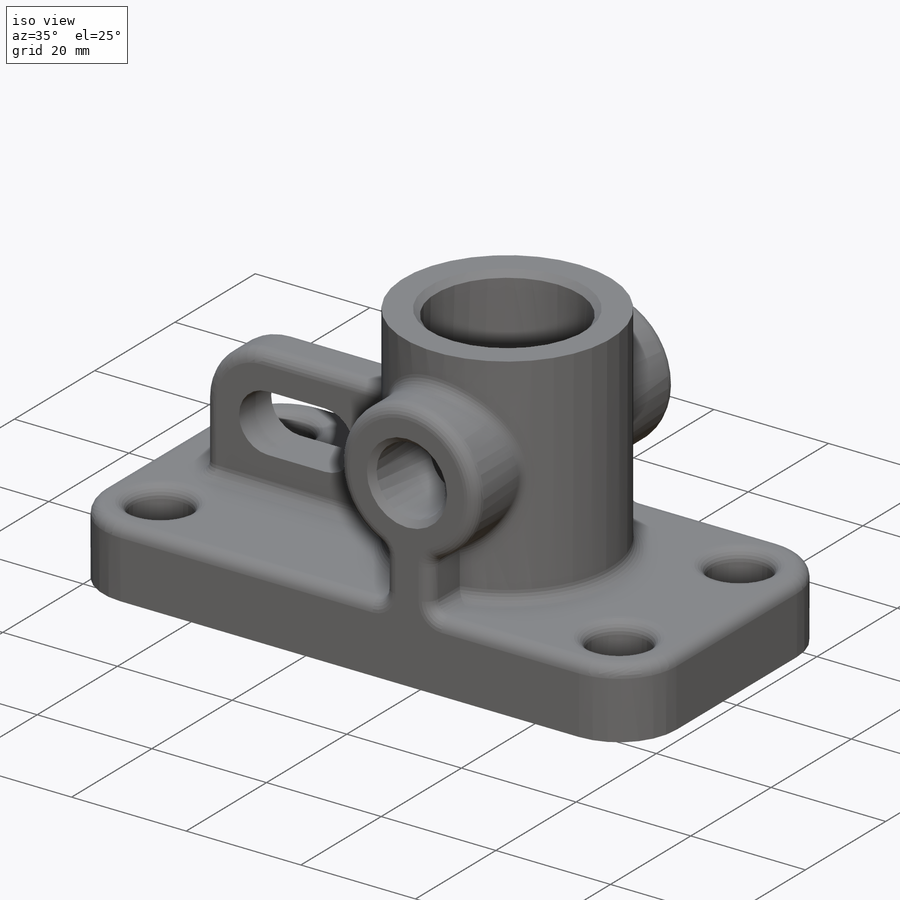
[diagram: iso view]
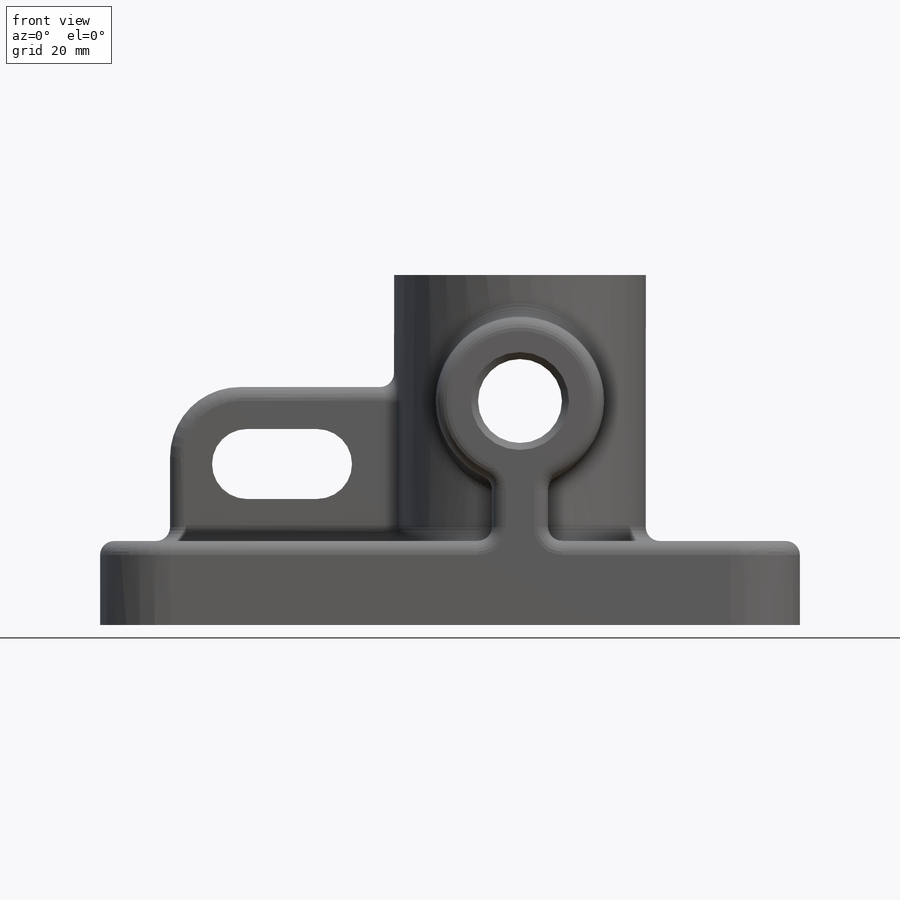
[diagram: front view]
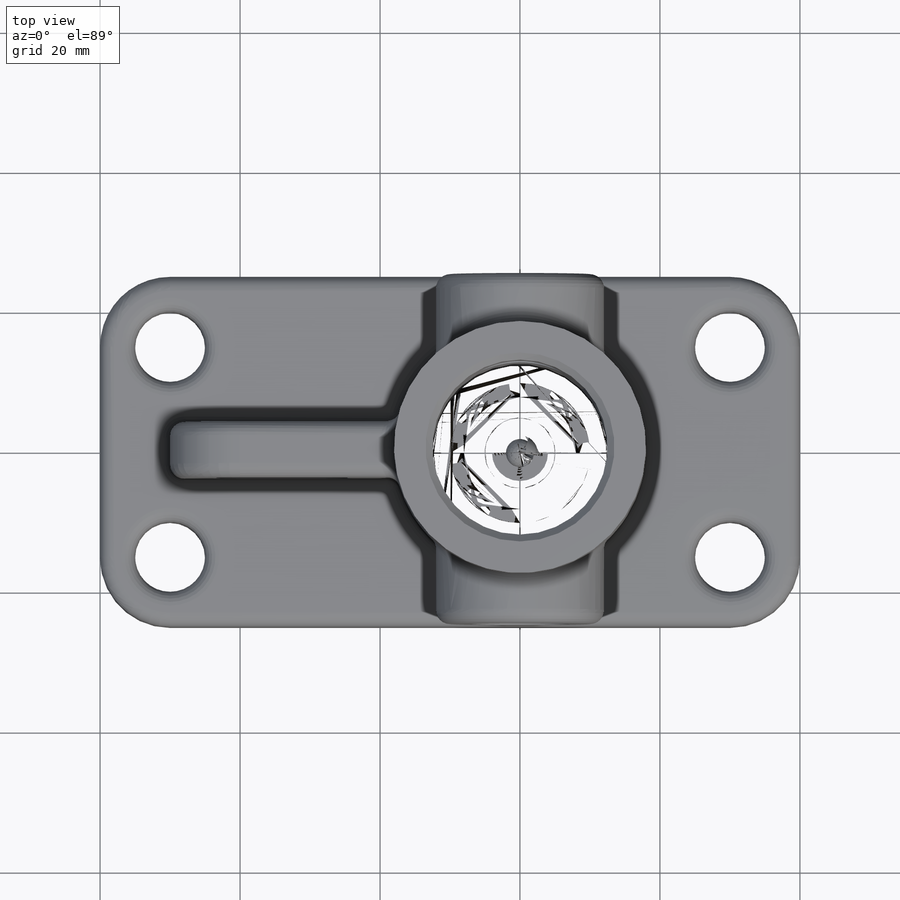
[diagram: top view]
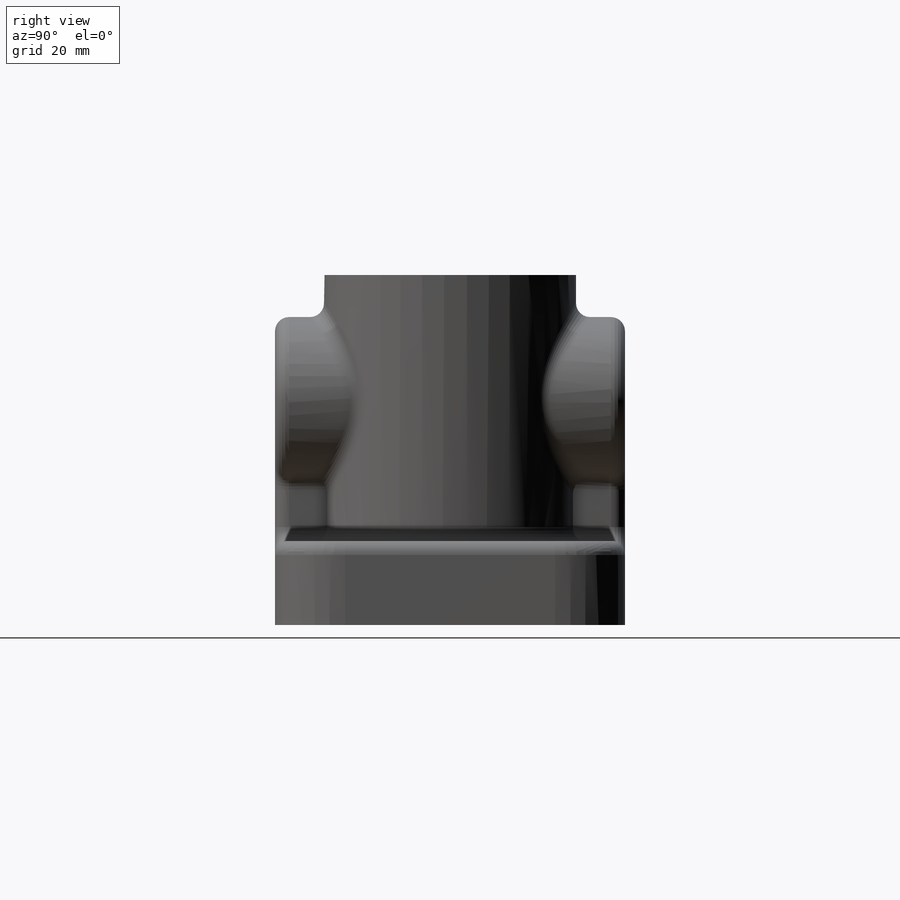
[diagram: right view]
SOLIDWORKS PART (.sldprt)
format: sldprt  version: not decoded by parser v0  size: 775,168 bytes
history: native  units: mm
features: sketch x12, plane x3, extrude x3, pattern_linear x3, material x1, revolve x1, mirror x1, hole x1, cut_extrude x1, fillet x1, chamfer x1 (+8 scaffold rows collapsed)
feature tree (36):
  scaffold x8  (default folders/planes/origin — collapsed)
  material  "灰铸铁"
  plane  "前视基准面"
  plane  "上视基准面"
  plane  "右视基准面"
  sketch  "草图1"  dims[D1=10.0mm D2=100.0mm D3=50.0mm D4=60.0mm]
  extrude  "凸台-拉伸1"  Depth=12mm
  sketch  "草图3"  dims[D1=36.0mm D2=38.0mm]
  revolve  "旋转2"  Angle=360deg
  sketch  "草图6"  dims[D1=24.0mm D2=32.0mm]
  extrude  "凸台-拉伸3"  [1 undecoded]
  sketch  "草图8"  dims[D1=10.0mm D2=50.0mm D3=22.0mm]
  extrude  "凸台-拉伸4"  Depth=8mm
  sketch  "草图9"  dims[D1=8.0mm]
  mirror  "镜向1"
  hole  "Ø10.0 (10) 直径孔1"  [1 undecoded]
  sketch  "草图12"
  sketch  "草图11"  dims[hole-wizard template sketch: 59 standard entries collapsed; hole parameters kept: c18.通孔孔直径=10.0mm c18.通孔孔深度=12.0mm]
  pattern_linear  "阵列(线性)2"  Count1=2 Count2=2 Spacing1=80mm Spacing2=30mm
  sketch  "草图13"  dims[c1.D2=5.0mm c1.D4=5.0mm c1.D1=10.0mm c2.D2=6.0mm c2.D3=11.0mm c2.D4=20.0mm c2.D1=5.0mm]
  cut_extrude  "切除-拉伸1"  [1 undecoded]
  pattern_linear  "Ø25.0 (25) 直径孔1"  [2 undecoded]
  sketch  "草图15"
  sketch  "草图14"  dims[hole-wizard template sketch: 59 standard entries collapsed; hole parameters kept: c18.通孔孔直径=25.0mm c18.通孔孔深度=50.0mm]
  pattern_linear  "Ø12.0 (12) 直径孔1"  [2 undecoded]
  sketch  "草图17"
  sketch  "草图16"  dims[hole-wizard template sketch: 59 standard entries collapsed; hole parameters kept: c18.通孔孔直径=12.0mm c18.通孔孔深度=50.0mm]
  fillet  "圆角2"  Radius=2mm
  chamfer  "倒角1"  Distance=1mm Angle=45deg
decode coverage: 15 of 24 modeling features carry decoded parameters
note: ~ marks probable driven/reference dimensions
note: 7 parameter values undecoded
summary: no parameter record found for 3 features
note: suppression state not decoded; provenance and decode notes live in map.json
